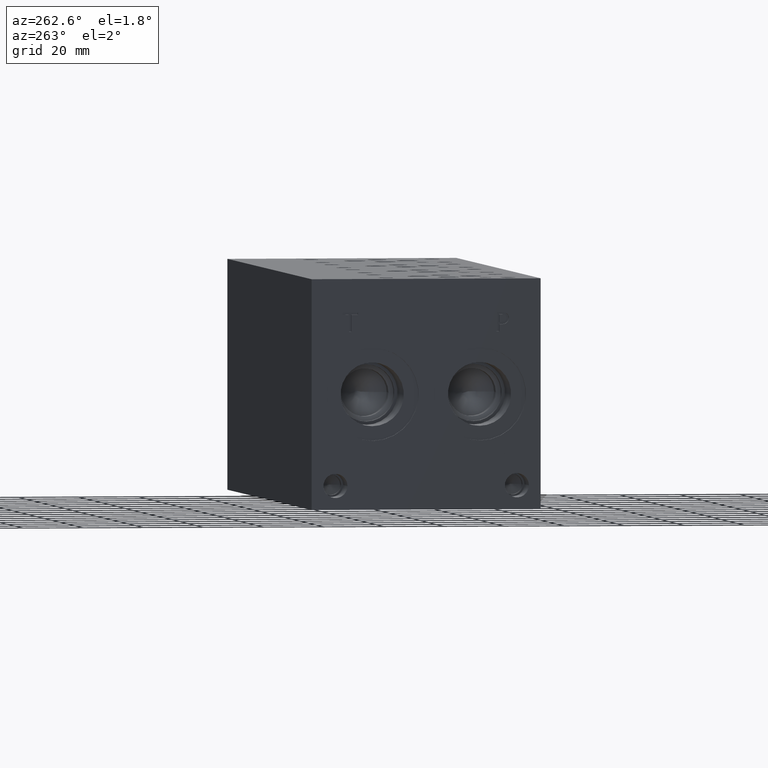
[diagram: clean part render]
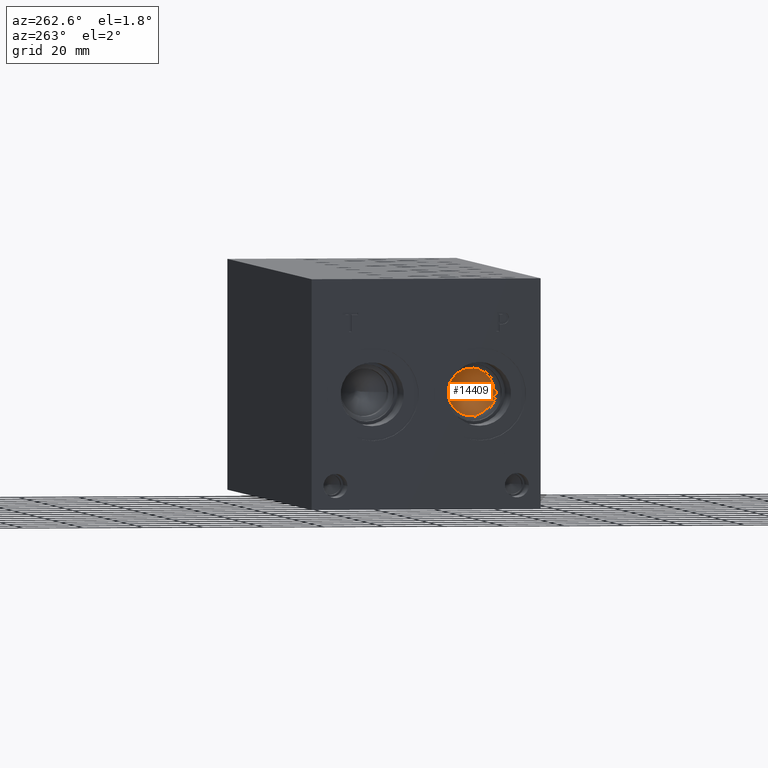
[diagram: same view with one face highlighted and labeled with its STEP entity id]
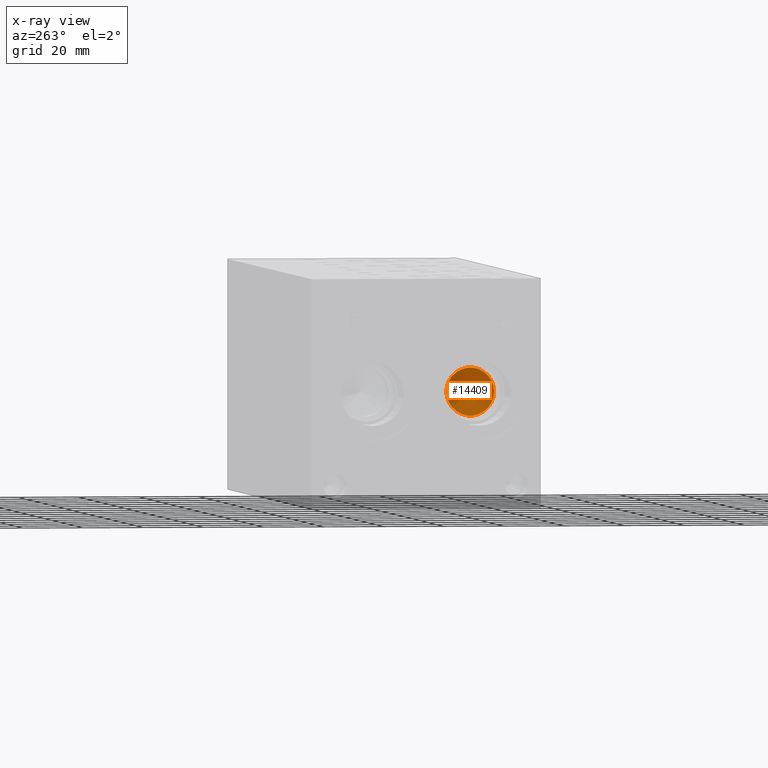
[diagram: x-ray of the same camera — body ghosted, the highlighted face saturated]
A machine part, auxiliary view. The second image highlights one B-rep face of the part: STEP entity #14409.
The next image is the same camera in x-ray: the body ghosted, the highlighted face saturated — about 0% of this face is hidden behind the body in this view.
In plain terms, the highlighted conical surface has half-angle 60 deg.
Its self-contained STEP definition (entity closure, byte-faithful):
#40=CONICAL_SURFACE('',#15208,3.96875,1.0471975511966);
#386=CIRCLE('',#15209,7.9375);
#387=CIRCLE('',#15210,7.9375);
#1863=FACE_OUTER_BOUND('',#2708,.T.);
#2708=EDGE_LOOP('',(#12230,#12231,#12232,#12233));
#4059=LINE('',#24430,#5334);
#5334=VECTOR('',#18049,3.96875);
#6599=VERTEX_POINT('',#24426);
#6600=VERTEX_POINT('',#24427);
#6601=VERTEX_POINT('',#24429);
#8547=EDGE_CURVE('',#6599,#6600,#386,.T.);
#8548=EDGE_CURVE('',#6600,#6601,#4059,.T.);
#8549=EDGE_CURVE('',#6600,#6599,#387,.T.);
#12230=ORIENTED_EDGE('',*,*,#8547,.T.);
#12231=ORIENTED_EDGE('',*,*,#8548,.T.);
#12232=ORIENTED_EDGE('',*,*,#8548,.F.);
#12233=ORIENTED_EDGE('',*,*,#8549,.T.);
#14409=ADVANCED_FACE('',(#1863),#40,.F.);
#15208=AXIS2_PLACEMENT_3D('',#24425,#18045,#18046);
#15209=AXIS2_PLACEMENT_3D('',#24428,#18047,#18048);
#15210=AXIS2_PLACEMENT_3D('',#24431,#18050,#18051);
#18045=DIRECTION('center_axis',(-1.,0.,0.));
#18046=DIRECTION('ref_axis',(0.,1.,0.));
#18047=DIRECTION('center_axis',(-1.,0.,0.));
#18048=DIRECTION('ref_axis',(0.,1.,0.));
#18049=DIRECTION('',(0.5,0.866025403784439,-1.06057523872491E-16));
#18050=DIRECTION('center_axis',(-1.,0.,0.));
#18051=DIRECTION('ref_axis',(0.,1.,0.));
#24425=CARTESIAN_POINT('Origin',(26.9801588808463,20.2438,38.1));
#24426=CARTESIAN_POINT('',(24.6888,28.1813,38.1));
#24427=CARTESIAN_POINT('',(24.6888,12.3063,38.1));
#24428=CARTESIAN_POINT('Origin',(24.6888,20.2438,38.1));
#24429=CARTESIAN_POINT('',(29.2715177616927,20.2438,38.1));
#24430=CARTESIAN_POINT('',(26.9801588808463,16.27505,38.1));
#24431=CARTESIAN_POINT('Origin',(24.6888,20.2438,38.1));